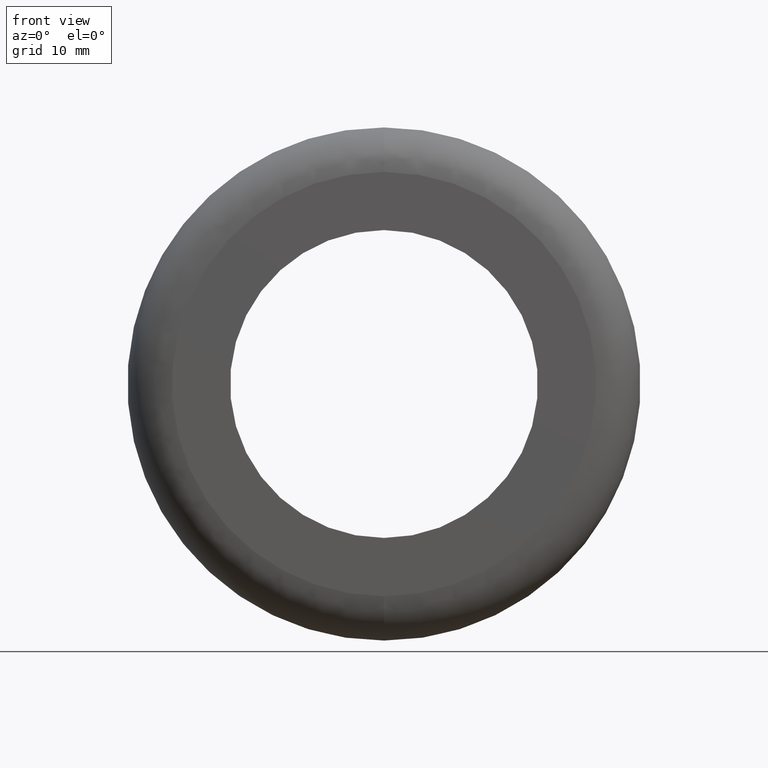
[diagram: clean part render]
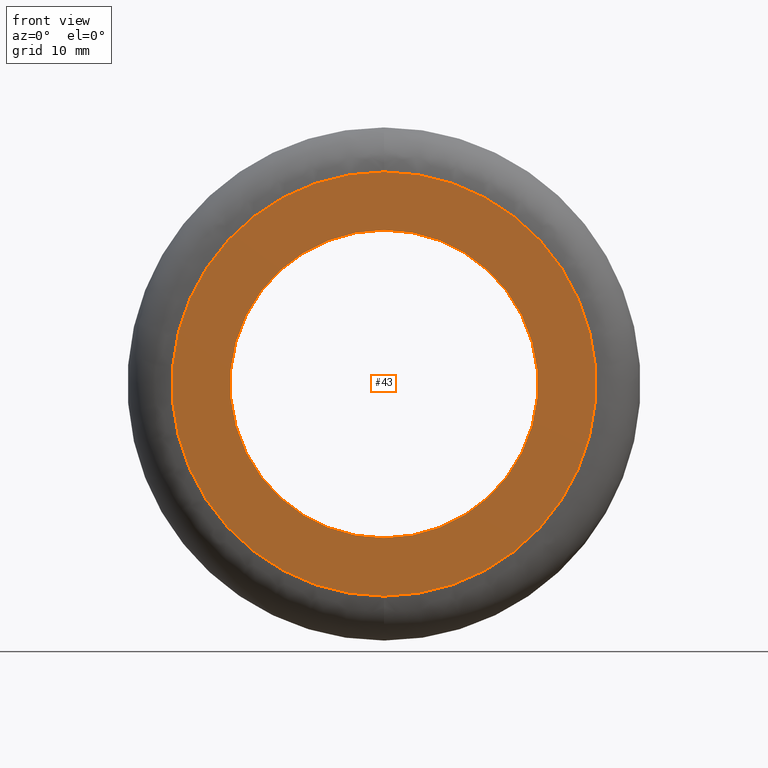
[diagram: same view with one face highlighted and labeled with its STEP entity id]
A machine part, front view. The second image highlights one B-rep face of the part: STEP entity #43.
In plain terms, the highlighted planar face has unit normal (-0, 1, 0).
Its self-contained STEP definition (entity closure, byte-faithful):
#43=ADVANCED_FACE('',(#86,#87),#85,.F.);
#85=PLANE('',#197);
#86=FACE_OUTER_BOUND('',#198,.T.);
#87=FACE_BOUND('',#199,.T.);
#194=CARTESIAN_POINT('',(-6.36935750346E+001,0.00000000000E+000,-4.03000000000E+001));
#195=DIRECTION('',(-0.00000000000E+000,1.00000000000E+000,0.00000000000E+000));
#196=DIRECTION('',(0.00000000000E+000,0.00000000000E+000,1.00000000000E+000));
#197=AXIS2_PLACEMENT_3D('',#194,#195,#196);
#198=EDGE_LOOP('',(#336,#337));
#199=EDGE_LOOP('',(#338,#339));
#336=ORIENTED_EDGE('',*,*,#384,.T.);
#337=ORIENTED_EDGE('',*,*,#385,.T.);
#338=ORIENTED_EDGE('',*,*,#386,.F.);
#339=ORIENTED_EDGE('',*,*,#387,.F.);
#384=EDGE_CURVE('',#480,#481,#482,.T.);
#385=EDGE_CURVE('',#481,#480,#488,.T.);
#386=EDGE_CURVE('',#494,#495,#496,.T.);
#387=EDGE_CURVE('',#495,#494,#502,.T.);
#480=VERTEX_POINT('',#616);
#481=VERTEX_POINT('',#617);
#482=CIRCLE('',#621,3.10000000000E+001);
#488=CIRCLE('',#625,3.10000000000E+001);
#494=VERTEX_POINT('',#626);
#495=VERTEX_POINT('',#627);
#496=CIRCLE('',#631,2.25000000000E+001);
#502=CIRCLE('',#635,2.25000000000E+001);
#616=CARTESIAN_POINT('',(-3.79627969685E-015,0.00000000000E+000,-3.10000000000E+001));
#617=CARTESIAN_POINT('',(-1.18423789293E-015,0.00000000000E+000,3.10000000000E+001));
#618=CARTESIAN_POINT('',(0.00000000000E+000,0.00000000000E+000,0.00000000000E+000));
#619=DIRECTION('',(0.00000000000E+000,-1.00000000000E+000,0.00000000000E+000));
#620=DIRECTION('',(-0.00000000000E+000,-0.00000000000E+000,-1.00000000000E+000));
#621=AXIS2_PLACEMENT_3D('',#618,#619,#620);
#622=CARTESIAN_POINT('',(0.00000000000E+000,0.00000000000E+000,0.00000000000E+000));
#623=DIRECTION('',(0.00000000000E+000,-1.00000000000E+000,0.00000000000E+000));
#624=DIRECTION('',(-0.00000000000E+000,-0.00000000000E+000,-1.00000000000E+000));
#625=AXIS2_PLACEMENT_3D('',#622,#623,#624);
#626=CARTESIAN_POINT('',(2.36847578587E-015,0.00000000000E+000,-2.25000000000E+001));
#627=CARTESIAN_POINT('',(3.86888510230E-016,0.00000000000E+000,2.25000000000E+001));
#628=CARTESIAN_POINT('',(0.00000000000E+000,0.00000000000E+000,0.00000000000E+000));
#629=DIRECTION('',(0.00000000000E+000,-1.00000000000E+000,0.00000000000E+000));
#630=DIRECTION('',(-1.05265590483E-016,-0.00000000000E+000,1.00000000000E+000));
#631=AXIS2_PLACEMENT_3D('',#628,#629,#630);
#632=CARTESIAN_POINT('',(0.00000000000E+000,0.00000000000E+000,0.00000000000E+000));
#633=DIRECTION('',(0.00000000000E+000,-1.00000000000E+000,0.00000000000E+000));
#634=DIRECTION('',(-1.05265590483E-016,-0.00000000000E+000,1.00000000000E+000));
#635=AXIS2_PLACEMENT_3D('',#632,#633,#634);